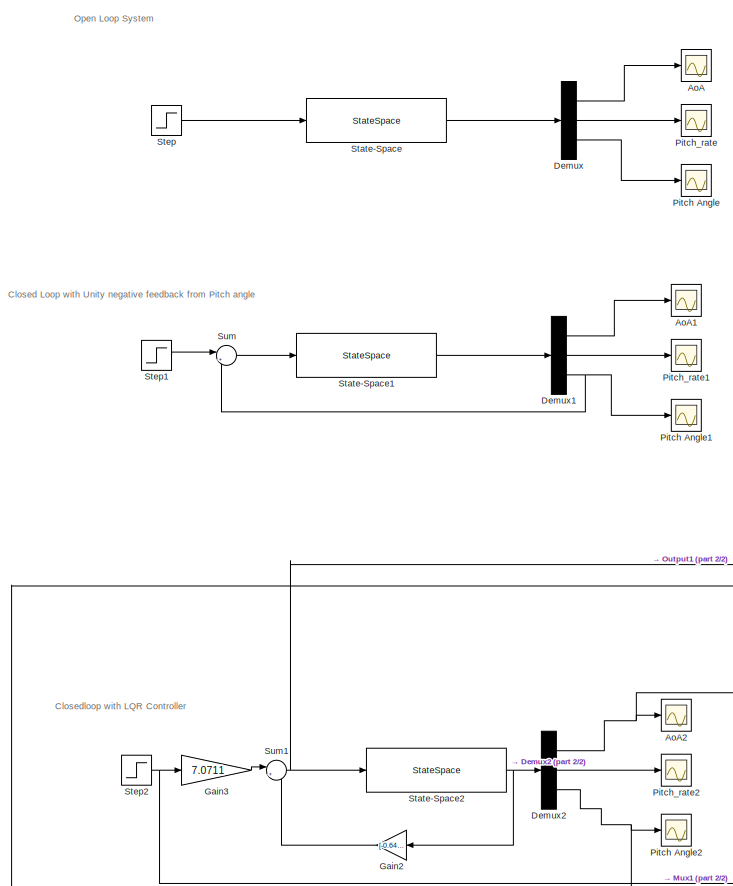
[diagram: root canvas - part 1/2, middle left region]
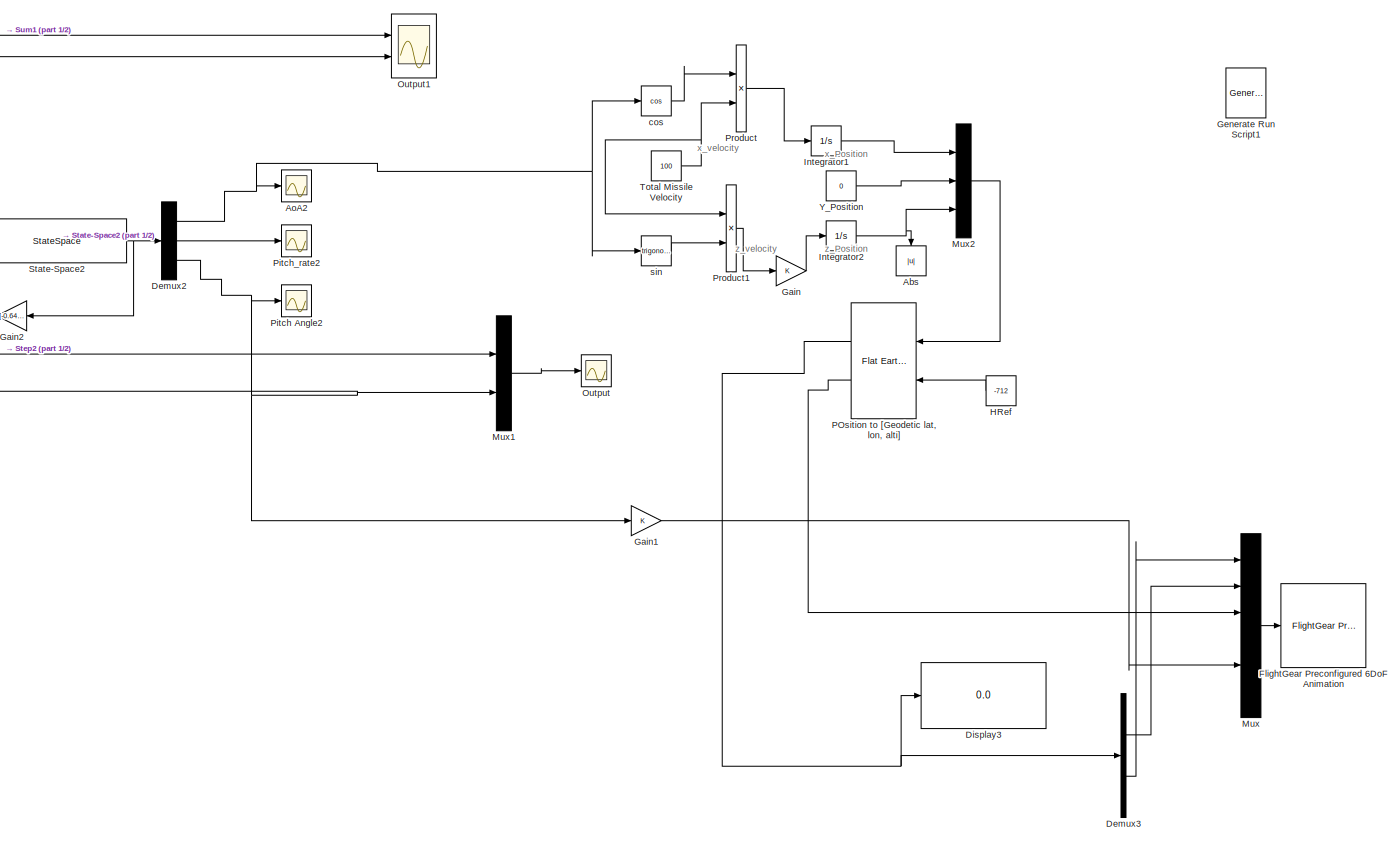
[diagram: root canvas - part 2/2, full width, bottom band]
MODEL slx_bf4e0f6e2906
KIND model
CONFIG AbsTol = auto
CONFIG EnableMultiTasking = off
CONFIG FixedStep = auto
CONFIG MaxStep = auto
CONFIG MinStep = auto
CONFIG RelTol = 1e-3
CONFIG SampleTimeConstraint = Unconstrained
CONFIG SolverName = VariableStepAuto
CONFIG StartTime = 0.0
CONFIG StopTime = 25
BLOCK [Abs] Abs
  NameLocation = left
  SaturateOnIntegerOverflow = off
BLOCK [Scope] AoA
  Floating = off
  NumInputPorts = 1
  Ports = [1]
  ScopeSpecificationString = Simulink.scopes.TimeScopeBlockCfg('CurrentConfiguration', extmgr.ConfigurationSet(extmgr.Configuration('Core','General UI',true),extmgr.Configuration('Core','Source UI',true),extmgr.Configuration('Sources','WiredSimulink',true),extmgr.Configuration('Visuals','Time Domain',true,'SerializedDisplays',{struct('MinYLimReal','-0.21568','MaxYLimReal','1.94112','YLabelReal','','MinYLimMag','0.00000','MaxY...<+1327ch>
BLOCK [Scope] AoA1
  Floating = off
  NumInputPorts = 1
  Ports = [1]
  ScopeSpecificationString = Simulink.scopes.TimeScopeBlockCfg('CurrentConfiguration', extmgr.ConfigurationSet(extmgr.Configuration('Core','General UI',true),extmgr.Configuration('Core','Source UI',true),extmgr.Configuration('Sources','WiredSimulink',true,'DataLoggingVariableName','ScopeData3'),extmgr.Configuration('Visuals','Time Domain',true,'SerializedDisplays',{struct('MinYLimReal','-0.10493','MaxYLimReal','0.94437','YLab...<+1367ch>
BLOCK [Scope] AoA2
  Floating = off
  NumInputPorts = 1
  Ports = [1]
  ScopeSpecificationString = Simulink.scopes.TimeScopeBlockCfg('CurrentConfiguration', extmgr.ConfigurationSet(extmgr.Configuration('Core','General UI',true),extmgr.Configuration('Core','Source UI',true),extmgr.Configuration('Sources','WiredSimulink',true,'DataLoggingVariableName','ScopeData1'),extmgr.Configuration('Visuals','Time Domain',true,'SerializedDisplays',{struct('MinYLimReal','-0.02047','MaxYLimReal','0.18422','YLab...<+1367ch>
BLOCK [Demux] Demux
  Outputs = 3
  Ports = [1, 3]
BLOCK [Demux] Demux1
  Outputs = 3
  Ports = [1, 3]
BLOCK [Demux] Demux2
  Outputs = 3
  Ports = [1, 3]
BLOCK [Demux] Demux3
  Outputs = 2
  Ports = [1, 2]
BLOCK [Display] Display3
  Decimation = 2
  Format = long
  Ports = [1]
BLOCK [Reference] FlightGear Preconfigured 6DoF Animation  REF=aerolibfltsims/FlightGear
Preconfigured
6DoF Animation
  Ports = [1]
  SourceBlock = aerolibfltsims/FlightGear\nPreconfigured\n6DoF Animation
  SourceProductBaseCode = AE
  SourceType = FlightGearQuick6DoFAnimation
BLOCK [Gain] Gain
BLOCK [Gain] Gain1
BLOCK [Gain] Gain2
  Gain = [-0.6435 169.6950 7.0711]
  Multiplication = Matrix(K*u)
BLOCK [Gain] Gain3
  Gain = 7.0711
BLOCK [Reference] Generate Run Script1  REF=aerolibfltsims/Generate
Run Script
  Ports = []
  SourceBlock = aerolibfltsims/Generate\nRun Script
  SourceProductBaseCode = AE
  SourceType = Generate FlightGear Run Script
BLOCK [Constant] HRef
  Value = -712
BLOCK [Integrator] Integrator1
  Ports = [1, 1]
BLOCK [Integrator] Integrator2
  InitialCondition = -500
  Ports = [1, 1]
BLOCK [Mux] Mux
  DisplayOption = bar
  Inputs = 6
  Ports = [6, 1]
BLOCK [Mux] Mux1
  DisplayOption = bar
  Inputs = 2
  Ports = [2, 1]
BLOCK [Mux] Mux2
  DisplayOption = bar
  Inputs = 3
  Ports = [3, 1]
BLOCK [Scope] Output
  Floating = off
  NumInputPorts = 1
  Ports = [1]
  ScopeSpecificationString = Simulink.scopes.TimeScopeBlockCfg('CurrentConfiguration', extmgr.ConfigurationSet(extmgr.Configuration('Core','General UI',true,'FigureColor',[1 1 1]),extmgr.Configuration('Core','Source UI',true),extmgr.Configuration('Sources','WiredSimulink',true,'DataLoggingVariableName','ScopeData4'),extmgr.Configuration('Visuals','Time Domain',true,'SerializedDisplays',{struct('MinYLimReal','-0.03279','MaxYLi...<+1547ch>
BLOCK [Scope] Output1
  Floating = off
  NumInputPorts = 2
  Ports = [2]
  ScopeSpecificationString = Simulink.scopes.TimeScopeBlockCfg('CurrentConfiguration', extmgr.ConfigurationSet(extmgr.Configuration('Core','General UI',true,'FigureColor',[1 1 1]),extmgr.Configuration('Core','Source UI',true),extmgr.Configuration('Sources','WiredSimulink',true,'DataLoggingVariableName','ScopeData1'),extmgr.Configuration('Visuals','Time Domain',true,'SerializedDisplays',{struct('MinYLimReal','-0.37965','MaxYLi...<+1545ch>
BLOCK [Reference] POsition to [Geodetic lat, lon, alti]  REF=aerolibtransform2/Flat Earth to LLA
  Ports = [2, 2]
  SourceBlock = aerolibtransform2/Flat Earth to LLA
  SourceProductBaseCode = AE
  SourceType = Flat Earth to LLA
BLOCK [Scope] Pitch Angle
  Floating = off
  NumInputPorts = 1
  Ports = [1]
  ScopeSpecificationString = Simulink.scopes.TimeScopeBlockCfg('CurrentConfiguration', extmgr.ConfigurationSet(extmgr.Configuration('Core','General UI',true),extmgr.Configuration('Core','Source UI',true),extmgr.Configuration('Sources','WiredSimulink',true,'DataLoggingVariableName','ScopeData2'),extmgr.Configuration('Visuals','Time Domain',true,'SerializedDisplays',{struct('MinYLimReal','-2.54359','MaxYLimReal','22.89234','YLa...<+1370ch>
BLOCK [Scope] Pitch Angle1
  Floating = off
  NumInputPorts = 1
  Ports = [1]
  ScopeSpecificationString = Simulink.scopes.TimeScopeBlockCfg('CurrentConfiguration', extmgr.ConfigurationSet(extmgr.Configuration('Core','General UI',true,'FigureColor',[1 1 1]),extmgr.Configuration('Core','Source UI',true),extmgr.Configuration('Sources','WiredSimulink',true,'DataLoggingVariableName','ScopeData4'),extmgr.Configuration('Visuals','Time Domain',true,'SerializedDisplays',{struct('MinYLimReal','-0.12499','MaxYLi...<+1484ch>
BLOCK [Scope] Pitch Angle2
  Floating = off
  NumInputPorts = 1
  Ports = [1]
  ScopeSpecificationString = Simulink.scopes.TimeScopeBlockCfg('CurrentConfiguration', extmgr.ConfigurationSet(extmgr.Configuration('Core','General UI',true,'FigureColor',[1 1 1]),extmgr.Configuration('Core','Source UI',true),extmgr.Configuration('Sources','WiredSimulink',true,'DataLoggingVariableName','ScopeData2'),extmgr.Configuration('Visuals','Time Domain',true,'SerializedDisplays',{struct('MinYLimReal','-0.03279','MaxYLi...<+1564ch>
BLOCK [Scope] Pitch_rate
  Floating = off
  NumInputPorts = 1
  Ports = [1]
  ScopeSpecificationString = Simulink.scopes.TimeScopeBlockCfg('CurrentConfiguration', extmgr.ConfigurationSet(extmgr.Configuration('Core','General UI',true),extmgr.Configuration('Core','Source UI',true),extmgr.Configuration('Sources','WiredSimulink',true,'DataLoggingVariableName','ScopeData1'),extmgr.Configuration('Visuals','Time Domain',true,'SerializedDisplays',{struct('MinYLimReal','-0.00185','MaxYLimReal','0.01667','YLab...<+1366ch>
BLOCK [Scope] Pitch_rate1
  Floating = off
  NumInputPorts = 1
  Ports = [1]
  ScopeSpecificationString = Simulink.scopes.TimeScopeBlockCfg('CurrentConfiguration', extmgr.ConfigurationSet(extmgr.Configuration('Core','General UI',true),extmgr.Configuration('Core','Source UI',true),extmgr.Configuration('Sources','WiredSimulink',true,'DataLoggingVariableName','ScopeData5'),extmgr.Configuration('Visuals','Time Domain',true,'SerializedDisplays',{struct('MinYLimReal','-0.00622','MaxYLimReal','0.01244','YLab...<+1367ch>
BLOCK [Scope] Pitch_rate2
  Floating = off
  NumInputPorts = 1
  Ports = [1]
  ScopeSpecificationString = Simulink.scopes.TimeScopeBlockCfg('CurrentConfiguration', extmgr.ConfigurationSet(extmgr.Configuration('Core','General UI',true),extmgr.Configuration('Core','Source UI',true),extmgr.Configuration('Sources','WiredSimulink',true,'DataLoggingVariableName','ScopeData3'),extmgr.Configuration('Visuals','Time Domain',true,'SerializedDisplays',{struct('MinYLimReal','-0.00024','MaxYLimReal','0.00204','YLab...<+1367ch>
BLOCK [Product] Product
  Ports = [2, 1]
BLOCK [Product] Product1
  Ports = [2, 1]
BLOCK [StateSpace] State-Space
  A = [-0.313 56.7 0; -0.0139 -0.426 0; 0 56.7 0]
  B = [0.232; 0.0203; 0]
  C = eye(3)
  ContinuousStateAttributes = {'aoa', 'pitch_rate', 'pitch_angle'}
  D = [0;0;0]
  InitialCondition = 0
  Ports = [1, 1]
BLOCK [StateSpace] State-Space1
  A = [-0.313 56.7 0; -0.0139 -0.426 0; 0 56.7 0]
  B = [0.232; 0.0203; 0]
  C = eye(3)
  ContinuousStateAttributes = {'aoa', 'pitch_rate', 'pitch_angle'}
  D = [0;0;0]
  InitialCondition = 0
  Ports = [1, 1]
BLOCK [StateSpace] State-Space2
  A = [-0.313 56.7 0; -0.0139 -0.426 0; 0 56.7 0]
  B = [0.232; 0.0203; 0]
  C = eye(3)
  ContinuousStateAttributes = {'aoa', 'pitch_rate', 'pitch_angle'}
  D = [0;0;0]
  InitialCondition = 0
  Ports = [1, 1]
BLOCK [Step] Step
  SampleTime = 0
  Time = 0
BLOCK [Step] Step1
  SampleTime = 0
  Time = 0
BLOCK [Step] Step2
  After = 0.25
  SampleTime = 0
  Time = 0
BLOCK [Sum] Sum
  Inputs = |+-
  Ports = [2, 1]
BLOCK [Sum] Sum1
  Inputs = |+-
  Ports = [2, 1]
BLOCK [Constant] Total Missile Velocity
  Value = 100
BLOCK [Constant] Y_Position
  Value = 0
BLOCK [Trigonometry] cos
  Operator = cos
  Ports = [1, 1]
BLOCK [Trigonometry] sin
  Ports = [1, 1]
ANNOTATION (root): Closed Loop with Unity negative feedback from Pitch angle
ANNOTATION (root): Closedloop with LQR Controller
ANNOTATION (root): Open Loop System
ANNOTATION (root): x_Position
ANNOTATION (root): x_velocity
ANNOTATION (root): z_Position
ANNOTATION (root): z_velocity
LINE Demux1:1 -> AoA1:1
LINE Demux1:2 -> Pitch_rate1:1
NET Demux1:3 -> Pitch Angle1:1, Sum:2
NET Demux2:1 -> AoA2:1, cos:1, sin:1
LINE Demux2:2 -> Pitch_rate2:1
NET Demux2:3 -> Gain1:1, Mux1:2, Output1:2, Pitch Angle2:1
LINE Demux3:1 -> Mux:2
LINE Demux3:2 -> Mux:1
LINE Demux:1 -> AoA:1
LINE Demux:2 -> Pitch_rate:1
LINE Demux:3 -> Pitch Angle:1
LINE Gain1:1 -> Mux:5
LINE Gain2:1 -> Sum1:2
LINE Gain3:1 -> Sum1:1
LINE Gain:1 -> Integrator2:1
LINE HRef:1 -> POsition to [Geodetic lat, lon, alti]:2
LINE Integrator1:1 -> Mux2:1
NET Integrator2:1 -> Abs:1, Mux2:3
LINE Mux1:1 -> Output:1
LINE Mux2:1 -> POsition to [Geodetic lat, lon, alti]:1
LINE Mux:1 -> FlightGear Preconfigured 6DoF Animation:1
NET POsition to [Geodetic lat, lon, alti]:1 -> Demux3:1, Display3:1
LINE POsition to [Geodetic lat, lon, alti]:2 -> Mux:3
LINE Product1:1 -> Gain:1
LINE Product:1 -> Integrator1:1
LINE State-Space1:1 -> Demux1:1
NET State-Space2:1 -> Demux2:1, Gain2:1
LINE State-Space:1 -> Demux:1
LINE Step1:1 -> Sum:1
NET Step2:1 -> Gain3:1, Mux1:1
LINE Step:1 -> State-Space:1
NET Sum1:1 -> Output1:1, State-Space2:1
LINE Sum:1 -> State-Space1:1
NET Total Missile Velocity:1 -> Product1:1, Product:2
LINE Y_Position:1 -> Mux2:2
LINE cos:1 -> Product:1
LINE sin:1 -> Product1:2
note: NET lines group one-source signal fan-out (src -> all destinations, sorted); 1:1 wires keep LINE
